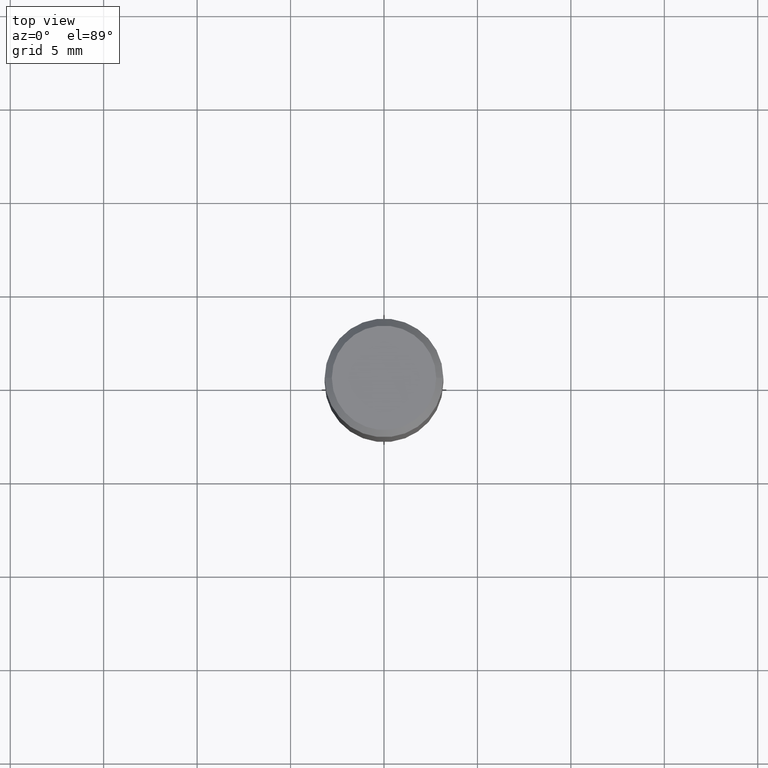
[diagram: clean part render]
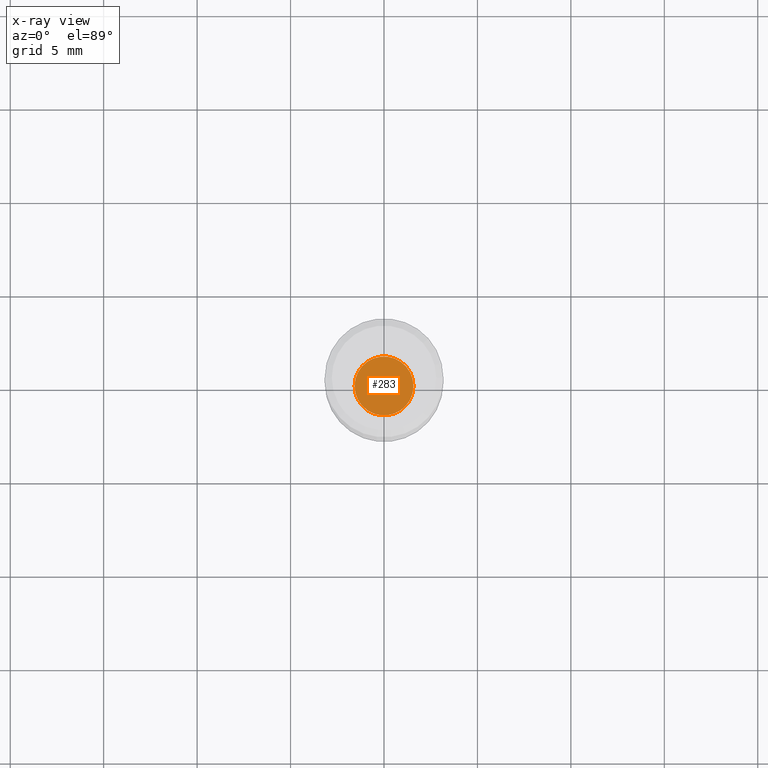
[diagram: x-ray — body ghosted, one internal face saturated and labeled with its STEP entity id]
A machine part, top view, then the same camera in x-ray: the body is ghosted and one INTERNAL B-rep face — a face not visible from any outside direction — is saturated and labeled: STEP entity #283.
In plain terms, the highlighted planar face has unit normal (-0, 0, 1).
Its self-contained STEP definition (entity closure, byte-faithful):
#7 = PLANE ( 'NONE',  #180 ) ;
#16 = CIRCLE ( 'NONE', #173, 0.06199999999999999956 ) ;
#21 = DIRECTION ( 'NONE',  ( -2.445468806185136597E-29, 3.491481338843145583E-15, 1.000000000000000000 ) ) ;
#44 = DIRECTION ( 'NONE',  ( -2.438088387897960049E-29, 3.491481338843145188E-15, 1.000000000000000000 ) ) ;
#85 = ORIENTED_EDGE ( 'NONE', *, *, #144, .F. ) ;
#99 = DIRECTION ( 'NONE',  ( 1.000000000000000000, -6.982962677686270655E-15, 0.000000000000000000 ) ) ;
#102 = AXIS2_PLACEMENT_3D ( 'NONE', #170, #299, #99 ) ;
#110 = ORIENTED_EDGE ( 'NONE', *, *, #434, .F. ) ;
#111 = CARTESIAN_POINT ( 'NONE',  ( 2.445468806185136877E-29, -3.491481338843145977E-15, -1.000000000000000222 ) ) ;
#144 = EDGE_CURVE ( 'NONE', #358, #288, #16, .T. ) ;
#170 = CARTESIAN_POINT ( 'NONE',  ( 2.445468806185136877E-29, -3.491481338843145977E-15, -1.000000000000000222 ) ) ;
#173 = AXIS2_PLACEMENT_3D ( 'NONE', #341, #21, #208 ) ;
#180 = AXIS2_PLACEMENT_3D ( 'NONE', #111, #44, #333 ) ;
#208 = DIRECTION ( 'NONE',  ( 1.000000000000000000, -6.982962677686270655E-15, 0.000000000000000000 ) ) ;
#230 = CARTESIAN_POINT ( 'NONE',  ( -0.06199999999999999956, -3.048295615497772664E-15, -1.000000000000000222 ) ) ;
#247 = CIRCLE ( 'NONE', #102, 0.06199999999999999956 ) ;
#250 = EDGE_LOOP ( 'NONE', ( #85, #110 ) ) ;
#283 = ADVANCED_FACE ( 'NONE', ( #293 ), #7, .F. ) ;
#288 = VERTEX_POINT ( 'NONE', #230 ) ;
#293 = FACE_OUTER_BOUND ( 'NONE', #250, .T. ) ;
#299 = DIRECTION ( 'NONE',  ( -2.445468806185136597E-29, 3.491481338843145583E-15, 1.000000000000000000 ) ) ;
#333 = DIRECTION ( 'NONE',  ( 1.000000000000000000, -6.982962677686265922E-15, 4.876176775795935793E-29 ) ) ;
#335 = CARTESIAN_POINT ( 'NONE',  ( 0.06199999999999999956, -3.924425024859694639E-15, -1.000000000000000222 ) ) ;
#341 = CARTESIAN_POINT ( 'NONE',  ( 2.445468806185136877E-29, -3.491481338843145977E-15, -1.000000000000000222 ) ) ;
#358 = VERTEX_POINT ( 'NONE', #335 ) ;
#434 = EDGE_CURVE ( 'NONE', #288, #358, #247, .T. ) ;